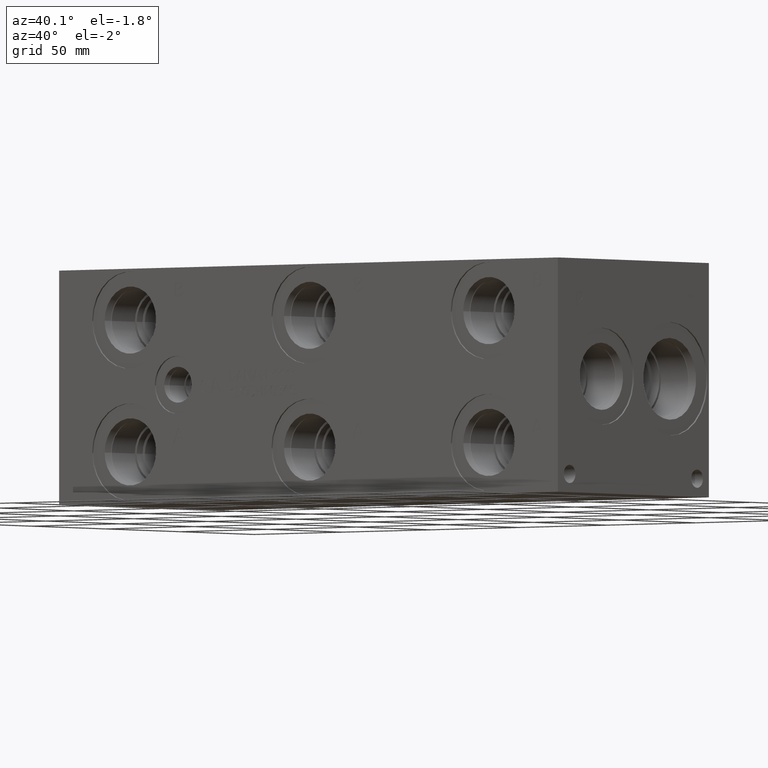
[diagram: clean part render]
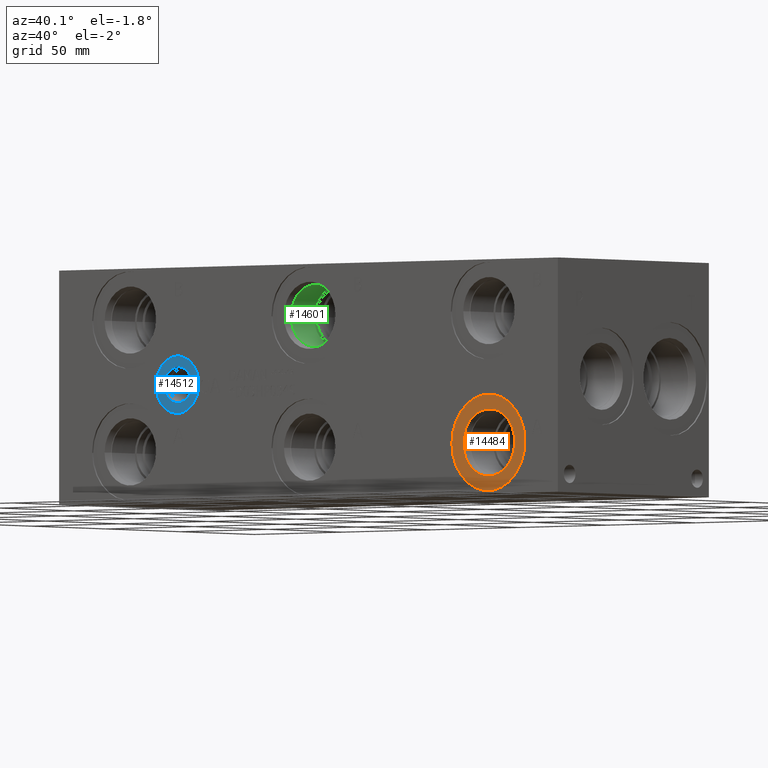
[diagram: same view with three faces highlighted in distinct colors, each labeled with its STEP entity id]
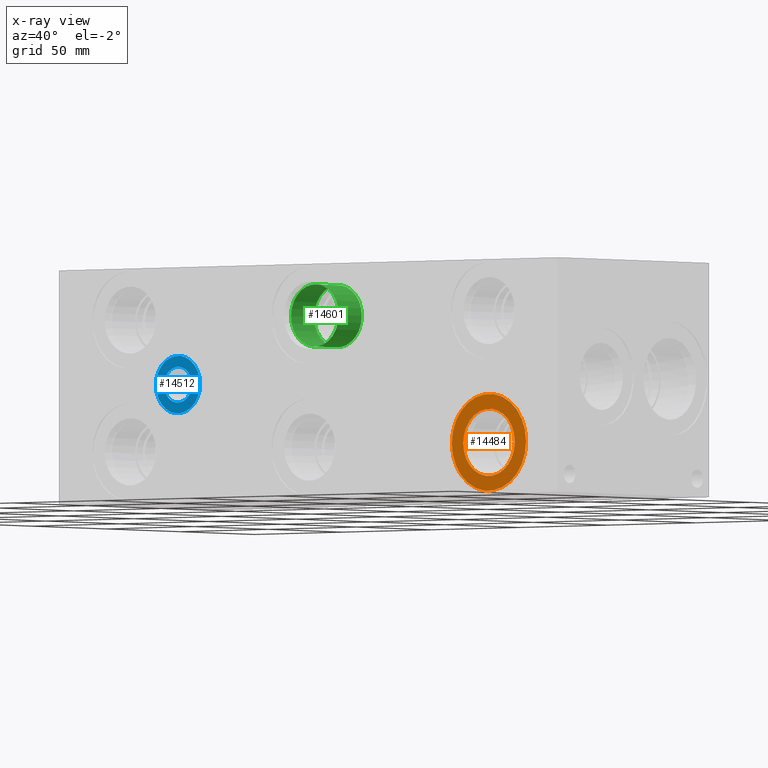
[diagram: x-ray of the same camera — body ghosted, the three highlighted faces saturated]
A machine part, auxiliary view with three faces highlighted in distinct colors.
The next image is the same camera in x-ray (body ghosted, the three faces saturated) — at least one of them is partly hidden behind the body in this view.
Their STEP definitions:

[orange] entity #14484 — the highlighted planar face has unit normal (0, 1, 0).
#395=CIRCLE('',#15114,21.0185);
#396=CIRCLE('',#15115,21.0185);
#397=CIRCLE('',#15117,14.5923);
#398=CIRCLE('',#15118,14.5923);
#1164=FACE_BOUND('',#2596,.T.);
#1769=FACE_OUTER_BOUND('',#2595,.T.);
#2595=EDGE_LOOP('',(#11894,#11895));
#2596=EDGE_LOOP('',(#11896,#11897));
#6504=VERTEX_POINT('',#24259);
#6505=VERTEX_POINT('',#24261);
#6506=VERTEX_POINT('',#24265);
#6507=VERTEX_POINT('',#24266);
#8406=EDGE_CURVE('',#6504,#6505,#395,.T.);
#8407=EDGE_CURVE('',#6505,#6504,#396,.T.);
#8408=EDGE_CURVE('',#6506,#6507,#397,.T.);
#8409=EDGE_CURVE('',#6507,#6506,#398,.T.);
#11894=ORIENTED_EDGE('',*,*,#8407,.F.);
#11895=ORIENTED_EDGE('',*,*,#8406,.F.);
#11896=ORIENTED_EDGE('',*,*,#8408,.T.);
#11897=ORIENTED_EDGE('',*,*,#8409,.T.);
#13380=PLANE('',#15116);
#14484=ADVANCED_FACE('',(#1769,#1164),#13380,.F.);
#15114=AXIS2_PLACEMENT_3D('',#24262,#17610,#17611);
#15115=AXIS2_PLACEMENT_3D('',#24263,#17612,#17613);
#15116=AXIS2_PLACEMENT_3D('',#24264,#17614,#17615);
#15117=AXIS2_PLACEMENT_3D('',#24267,#17616,#17617);
#15118=AXIS2_PLACEMENT_3D('',#24268,#17618,#17619);
#17610=DIRECTION('center_axis',(0.,1.,0.));
#17611=DIRECTION('ref_axis',(1.,0.,0.));
#17612=DIRECTION('center_axis',(0.,1.,0.));
#17613=DIRECTION('ref_axis',(1.,0.,0.));
#17614=DIRECTION('center_axis',(0.,1.,0.));
#17615=DIRECTION('ref_axis',(0.,0.,1.));
#17616=DIRECTION('center_axis',(0.,1.,0.));
#17617=DIRECTION('ref_axis',(1.,0.,0.));
#17618=DIRECTION('center_axis',(0.,1.,0.));
#17619=DIRECTION('ref_axis',(1.,0.,0.));
#24259=CARTESIAN_POINT('',(221.8563,0.7874,22.225));
#24261=CARTESIAN_POINT('',(263.8933,0.7874,22.225));
#24262=CARTESIAN_POINT('Origin',(242.8748,0.7874,22.225));
#24263=CARTESIAN_POINT('Origin',(242.8748,0.7874,22.225));
#24264=CARTESIAN_POINT('Origin',(257.4671,0.7874,22.225));
#24265=CARTESIAN_POINT('',(257.4671,0.7874,22.225));
#24266=CARTESIAN_POINT('',(228.2825,0.787400000000004,22.225));
#24267=CARTESIAN_POINT('Origin',(242.8748,0.7874,22.225));
#24268=CARTESIAN_POINT('Origin',(242.8748,0.7874,22.225));

[blue] entity #14512 — the highlighted planar face has unit normal (0, 1, 0).
#438=CIRCLE('',#15185,12.5095);
#439=CIRCLE('',#15186,12.5095);
#440=CIRCLE('',#15188,7.7978);
#441=CIRCLE('',#15189,7.7978);
#1169=FACE_BOUND('',#2629,.T.);
#1797=FACE_OUTER_BOUND('',#2628,.T.);
#2628=EDGE_LOOP('',(#12029,#12030));
#2629=EDGE_LOOP('',(#12031,#12032));
#6550=VERTEX_POINT('',#24399);
#6551=VERTEX_POINT('',#24401);
#6552=VERTEX_POINT('',#24405);
#6553=VERTEX_POINT('',#24406);
#8472=EDGE_CURVE('',#6550,#6551,#438,.T.);
#8473=EDGE_CURVE('',#6551,#6550,#439,.T.);
#8474=EDGE_CURVE('',#6552,#6553,#440,.T.);
#8475=EDGE_CURVE('',#6553,#6552,#441,.T.);
#12029=ORIENTED_EDGE('',*,*,#8473,.F.);
#12030=ORIENTED_EDGE('',*,*,#8472,.F.);
#12031=ORIENTED_EDGE('',*,*,#8474,.T.);
#12032=ORIENTED_EDGE('',*,*,#8475,.T.);
#13385=PLANE('',#15187);
#14512=ADVANCED_FACE('',(#1797,#1169),#13385,.F.);
#15185=AXIS2_PLACEMENT_3D('',#24402,#17775,#17776);
#15186=AXIS2_PLACEMENT_3D('',#24403,#17777,#17778);
#15187=AXIS2_PLACEMENT_3D('',#24404,#17779,#17780);
#15188=AXIS2_PLACEMENT_3D('',#24407,#17781,#17782);
#15189=AXIS2_PLACEMENT_3D('',#24408,#17783,#17784);
#17775=DIRECTION('center_axis',(0.,1.,0.));
#17776=DIRECTION('ref_axis',(1.,0.,0.));
#17777=DIRECTION('center_axis',(0.,1.,0.));
#17778=DIRECTION('ref_axis',(1.,0.,0.));
#17779=DIRECTION('center_axis',(0.,1.,0.));
#17780=DIRECTION('ref_axis',(0.,0.,1.));
#17781=DIRECTION('center_axis',(0.,1.,0.));
#17782=DIRECTION('ref_axis',(1.,0.,0.));
#17783=DIRECTION('center_axis',(0.,1.,0.));
#17784=DIRECTION('ref_axis',(1.,0.,0.));
#24399=CARTESIAN_POINT('',(54.1655,0.7874,50.8));
#24401=CARTESIAN_POINT('',(79.1845,0.7874,50.8));
#24402=CARTESIAN_POINT('Origin',(66.675,0.7874,50.8));
#24403=CARTESIAN_POINT('Origin',(66.675,0.7874,50.8));
#24404=CARTESIAN_POINT('Origin',(74.4728,0.7874,50.8));
#24405=CARTESIAN_POINT('',(74.4728,0.7874,50.8));
#24406=CARTESIAN_POINT('',(58.8772,0.787399999999999,50.8));
#24407=CARTESIAN_POINT('Origin',(66.675,0.7874,50.8));
#24408=CARTESIAN_POINT('Origin',(66.675,0.7874,50.8));

[green] entity #14601 — the highlighted cylindrical surface (bore or boss wall) has radius 13.495 mm, axis along (0, -1, 0).
#142=CYLINDRICAL_SURFACE('',#15418,13.495);
#555=CIRCLE('',#15376,13.495);
#579=CIRCLE('',#15415,13.495);
#580=CIRCLE('',#15416,13.495);
#1886=FACE_OUTER_BOUND('',#2734,.T.);
#2734=EDGE_LOOP('',(#12471,#12472,#12473,#12474,#12475));
#4102=LINE('',#24862,#5407);
#5407=VECTOR('',#18315,13.495);
#6675=VERTEX_POINT('',#24774);
#6703=VERTEX_POINT('',#24855);
#6704=VERTEX_POINT('',#24856);
#8648=EDGE_CURVE('',#6675,#6675,#555,.T.);
#8685=EDGE_CURVE('',#6703,#6704,#579,.T.);
#8686=EDGE_CURVE('',#6704,#6703,#580,.T.);
#8688=EDGE_CURVE('',#6675,#6704,#4102,.T.);
#12471=ORIENTED_EDGE('',*,*,#8648,.T.);
#12472=ORIENTED_EDGE('',*,*,#8688,.T.);
#12473=ORIENTED_EDGE('',*,*,#8685,.F.);
#12474=ORIENTED_EDGE('',*,*,#8686,.F.);
#12475=ORIENTED_EDGE('',*,*,#8688,.F.);
#14601=ADVANCED_FACE('',(#1886),#142,.F.);
#15376=AXIS2_PLACEMENT_3D('',#24776,#18216,#18217);
#15415=AXIS2_PLACEMENT_3D('',#24857,#18307,#18308);
#15416=AXIS2_PLACEMENT_3D('',#24858,#18309,#18310);
#15418=AXIS2_PLACEMENT_3D('',#24861,#18313,#18314);
#18216=DIRECTION('center_axis',(0.,-1.,0.));
#18217=DIRECTION('ref_axis',(1.,0.,0.));
#18307=DIRECTION('center_axis',(0.,-1.,0.));
#18308=DIRECTION('ref_axis',(1.,0.,0.));
#18309=DIRECTION('center_axis',(0.,-1.,0.));
#18310=DIRECTION('ref_axis',(1.,0.,0.));
#18313=DIRECTION('center_axis',(0.,-1.,0.));
#18314=DIRECTION('ref_axis',(1.,0.,0.));
#18315=DIRECTION('',(0.,1.,0.));
#24774=CARTESIAN_POINT('',(127.7798,4.28499999999999,79.375));
#24776=CARTESIAN_POINT('Origin',(141.2748,4.28499999999999,79.375));
#24855=CARTESIAN_POINT('',(154.7698,19.8374,79.375));
#24856=CARTESIAN_POINT('',(127.7798,19.8374,79.375));
#24857=CARTESIAN_POINT('Origin',(141.2748,19.8374,79.375));
#24858=CARTESIAN_POINT('Origin',(141.2748,19.8374,79.375));
#24861=CARTESIAN_POINT('Origin',(141.2748,9.9187,79.375));
#24862=CARTESIAN_POINT('',(127.7798,9.9187,79.375));